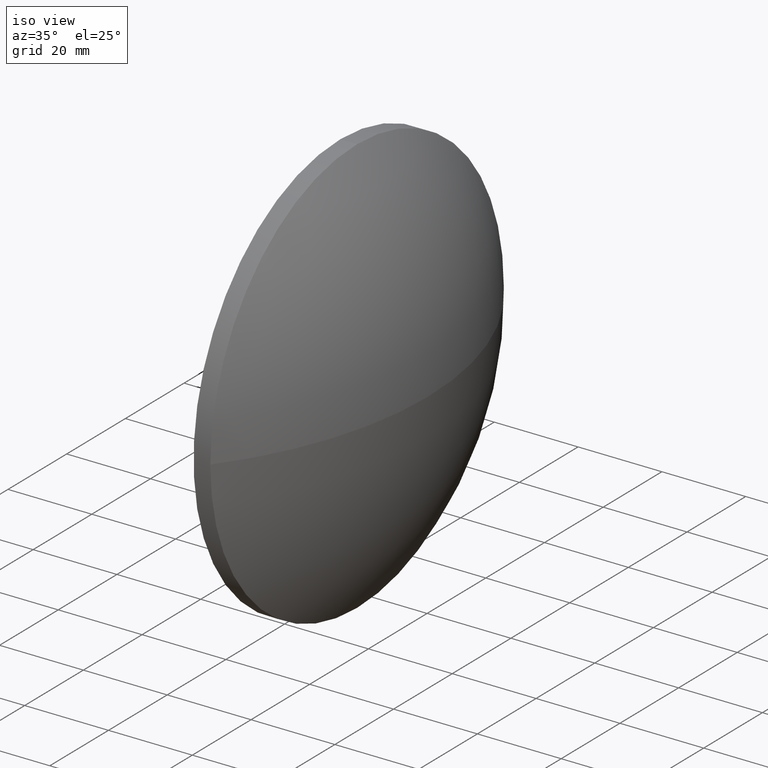
[diagram: clean part render]
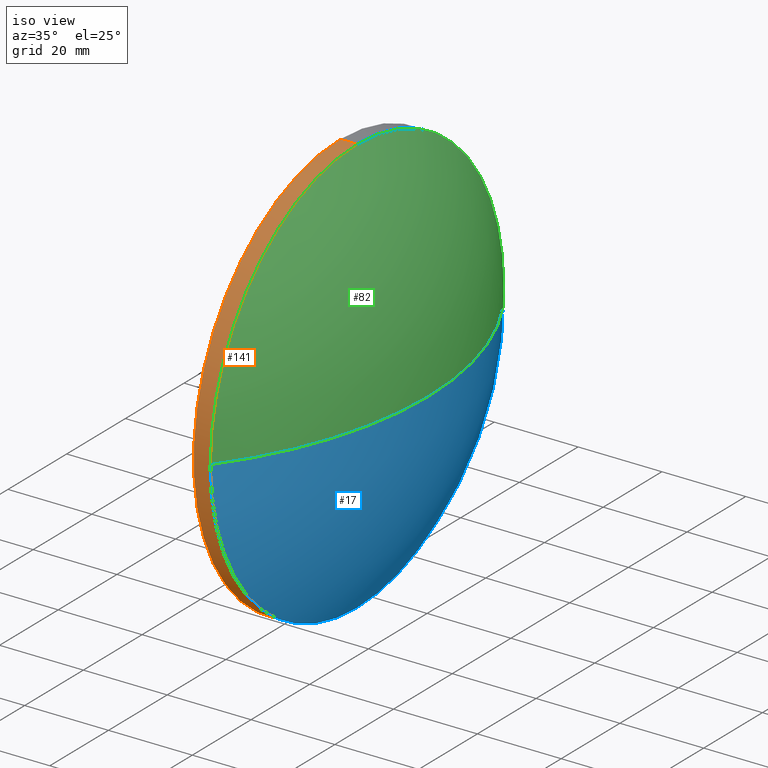
[diagram: same view with three faces highlighted in distinct colors, each labeled with its STEP entity id]
A machine part, iso view with three faces highlighted in distinct colors.
Their STEP definitions:

[orange] entity #141 — the highlighted cylindrical surface (partial cylindrical patch) has radius 50 mm, axis along (-1, -0, -0).
#6 = DIRECTION ( 'NONE',  ( -1.000000000000000000, -0.0000000000000000000, -0.0000000000000000000 ) ) ;
#20 = DIRECTION ( 'NONE',  ( 0.0000000000000000000, 0.0000000000000000000, 1.000000000000000000 ) ) ;
#21 = CARTESIAN_POINT ( 'NONE',  ( 229.9713472661685500, 130.4671098528244200, 50.00000000000001400 ) ) ;
#24 = CARTESIAN_POINT ( 'NONE',  ( 225.9713472661685500, 130.4671098528244200, 0.0000000000000000000 ) ) ;
#25 = CIRCLE ( 'NONE', #104, 50.00000000000001400 ) ;
#26 = DIRECTION ( 'NONE',  ( 0.0000000000000000000, 0.0000000000000000000, 1.000000000000000000 ) ) ;
#27 = LINE ( 'NONE', #184, #185 ) ;
#32 = EDGE_CURVE ( 'NONE', #165, #167, #152, .T. ) ;
#42 = DIRECTION ( 'NONE',  ( 0.0000000000000000000, 0.0000000000000000000, 1.000000000000000000 ) ) ;
#46 = EDGE_CURVE ( 'NONE', #161, #165, #25, .T. ) ;
#47 = ORIENTED_EDGE ( 'NONE', *, *, #145, .T. ) ;
#56 = CARTESIAN_POINT ( 'NONE',  ( 225.9713472661685500, 130.4671098528244200, -50.00000000000001400 ) ) ;
#57 = DIRECTION ( 'NONE',  ( -1.000000000000000000, -0.0000000000000000000, -0.0000000000000000000 ) ) ;
#58 = CARTESIAN_POINT ( 'NONE',  ( 229.9713472661685500, 80.46710985282440700, -6.123233995736769200E-015 ) ) ;
#84 = FACE_OUTER_BOUND ( 'NONE', #114, .T. ) ;
#85 = DIRECTION ( 'NONE',  ( -1.000000000000000000, -0.0000000000000000000, -0.0000000000000000000 ) ) ;
#86 = CARTESIAN_POINT ( 'NONE',  ( 217.9945825323866300, 130.4671098528244200, 50.00000000000001400 ) ) ;
#88 = CARTESIAN_POINT ( 'NONE',  ( 229.9713472661685500, 130.4671098528244200, 0.0000000000000000000 ) ) ;
#89 = AXIS2_PLACEMENT_3D ( 'NONE', #24, #144, #175 ) ;
#93 = CARTESIAN_POINT ( 'NONE',  ( 229.9713472661685500, 130.4671098528244200, 0.0000000000000000000 ) ) ;
#95 = VERTEX_POINT ( 'NONE', #56 ) ;
#96 = DIRECTION ( 'NONE',  ( -1.000000000000000000, -0.0000000000000000000, -0.0000000000000000000 ) ) ;
#97 = AXIS2_PLACEMENT_3D ( 'NONE', #183, #57, #42 ) ;
#104 = AXIS2_PLACEMENT_3D ( 'NONE', #88, #6, #20 ) ;
#106 = ORIENTED_EDGE ( 'NONE', *, *, #109, .F. ) ;
#107 = DIRECTION ( 'NONE',  ( -1.000000000000000000, -0.0000000000000000000, -0.0000000000000000000 ) ) ;
#109 = EDGE_CURVE ( 'NONE', #179, #95, #27, .T. ) ;
#114 = EDGE_LOOP ( 'NONE', ( #106, #47, #140, #126, #186 ) ) ;
#124 = CIRCLE ( 'NONE', #163, 50.00000000000001400 ) ;
#126 = ORIENTED_EDGE ( 'NONE', *, *, #32, .T. ) ;
#132 = CARTESIAN_POINT ( 'NONE',  ( 229.9713472661685500, 130.4671098528244200, -50.00000000000001400 ) ) ;
#140 = ORIENTED_EDGE ( 'NONE', *, *, #46, .T. ) ;
#141 = ADVANCED_FACE ( 'NONE', ( #84 ), #156, .T. ) ;
#144 = DIRECTION ( 'NONE',  ( -1.000000000000000000, -0.0000000000000000000, -0.0000000000000000000 ) ) ;
#145 = EDGE_CURVE ( 'NONE', #179, #161, #124, .T. ) ;
#149 = CIRCLE ( 'NONE', #89, 50.00000000000001400 ) ;
#150 = VECTOR ( 'NONE', #85, 1000.000000000000000 ) ;
#152 = LINE ( 'NONE', #86, #150 ) ;
#156 = CYLINDRICAL_SURFACE ( 'NONE', #97, 50.00000000000001400 ) ;
#157 = CARTESIAN_POINT ( 'NONE',  ( 225.9713472661685500, 130.4671098528244200, 50.00000000000001400 ) ) ;
#159 = EDGE_CURVE ( 'NONE', #95, #167, #149, .T. ) ;
#161 = VERTEX_POINT ( 'NONE', #58 ) ;
#163 = AXIS2_PLACEMENT_3D ( 'NONE', #93, #107, #26 ) ;
#165 = VERTEX_POINT ( 'NONE', #21 ) ;
#167 = VERTEX_POINT ( 'NONE', #157 ) ;
#175 = DIRECTION ( 'NONE',  ( 0.0000000000000000000, 0.0000000000000000000, 1.000000000000000000 ) ) ;
#179 = VERTEX_POINT ( 'NONE', #132 ) ;
#183 = CARTESIAN_POINT ( 'NONE',  ( 217.9945825323866300, 130.4671098528244200, 0.0000000000000000000 ) ) ;
#184 = CARTESIAN_POINT ( 'NONE',  ( 217.9945825323866300, 130.4671098528244200, -50.00000000000001400 ) ) ;
#185 = VECTOR ( 'NONE', #96, 1000.000000000000000 ) ;
#186 = ORIENTED_EDGE ( 'NONE', *, *, #159, .F. ) ;

[blue] entity #17 — the highlighted spherical surface has radius 82.609 mm.
#7 = CARTESIAN_POINT ( 'NONE',  ( 164.2123710050408900, 130.4671098528244200, 0.0000000000000000000 ) ) ;
#11 = EDGE_LOOP ( 'NONE', ( #172, #101, #14, #112 ) ) ;
#14 = ORIENTED_EDGE ( 'NONE', *, *, #145, .F. ) ;
#15 = CIRCLE ( 'NONE', #55, 50.00000000000001400 ) ;
#17 = ADVANCED_FACE ( 'NONE', ( #63 ), #79, .T. ) ;
#26 = DIRECTION ( 'NONE',  ( 0.0000000000000000000, 0.0000000000000000000, 1.000000000000000000 ) ) ;
#35 = EDGE_CURVE ( 'NONE', #164, #137, #122, .T. ) ;
#37 = DIRECTION ( 'NONE',  ( 1.000000000000000000, 0.0000000000000000000, 0.0000000000000000000 ) ) ;
#38 = CARTESIAN_POINT ( 'NONE',  ( 229.9713472661685500, 180.4671098528244500, 0.0000000000000000000 ) ) ;
#45 = CARTESIAN_POINT ( 'NONE',  ( 246.8213472661685400, 130.4671098528244200, 0.0000000000000000000 ) ) ;
#55 = AXIS2_PLACEMENT_3D ( 'NONE', #120, #72, #171 ) ;
#58 = CARTESIAN_POINT ( 'NONE',  ( 229.9713472661685500, 80.46710985282440700, -6.123233995736769200E-015 ) ) ;
#63 = FACE_OUTER_BOUND ( 'NONE', #11, .T. ) ;
#67 = CIRCLE ( 'NONE', #75, 82.60897626112768000 ) ;
#72 = DIRECTION ( 'NONE',  ( -1.000000000000000000, -0.0000000000000000000, -0.0000000000000000000 ) ) ;
#75 = AXIS2_PLACEMENT_3D ( 'NONE', #111, #136, #160 ) ;
#79 = SPHERICAL_SURFACE ( 'NONE', #127, 82.60897626112768000 ) ;
#81 = AXIS2_PLACEMENT_3D ( 'NONE', #129, #142, #37 ) ;
#93 = CARTESIAN_POINT ( 'NONE',  ( 229.9713472661685500, 130.4671098528244200, 0.0000000000000000000 ) ) ;
#101 = ORIENTED_EDGE ( 'NONE', *, *, #154, .T. ) ;
#107 = DIRECTION ( 'NONE',  ( -1.000000000000000000, -0.0000000000000000000, -0.0000000000000000000 ) ) ;
#111 = CARTESIAN_POINT ( 'NONE',  ( 164.2123710050408900, 130.4671098528244200, 0.0000000000000000000 ) ) ;
#112 = ORIENTED_EDGE ( 'NONE', *, *, #181, .F. ) ;
#120 = CARTESIAN_POINT ( 'NONE',  ( 229.9713472661685500, 130.4671098528244200, 0.0000000000000000000 ) ) ;
#122 = CIRCLE ( 'NONE', #81, 82.60897626112768000 ) ;
#124 = CIRCLE ( 'NONE', #163, 50.00000000000001400 ) ;
#127 = AXIS2_PLACEMENT_3D ( 'NONE', #7, #128, #168 ) ;
#128 = DIRECTION ( 'NONE',  ( -0.0000000000000000000, 0.0000000000000000000, -1.000000000000000000 ) ) ;
#129 = CARTESIAN_POINT ( 'NONE',  ( 164.2123710050408900, 130.4671098528244200, 0.0000000000000000000 ) ) ;
#132 = CARTESIAN_POINT ( 'NONE',  ( 229.9713472661685500, 130.4671098528244200, -50.00000000000001400 ) ) ;
#136 = DIRECTION ( 'NONE',  ( 0.0000000000000000000, 1.224646799147353200E-016, -1.000000000000000000 ) ) ;
#137 = VERTEX_POINT ( 'NONE', #38 ) ;
#142 = DIRECTION ( 'NONE',  ( -0.0000000000000000000, 0.0000000000000000000, 1.000000000000000000 ) ) ;
#145 = EDGE_CURVE ( 'NONE', #179, #161, #124, .T. ) ;
#154 = EDGE_CURVE ( 'NONE', #164, #161, #67, .T. ) ;
#160 = DIRECTION ( 'NONE',  ( 0.0000000000000000000, 1.000000000000000000, 1.224646799147353200E-016 ) ) ;
#161 = VERTEX_POINT ( 'NONE', #58 ) ;
#163 = AXIS2_PLACEMENT_3D ( 'NONE', #93, #107, #26 ) ;
#164 = VERTEX_POINT ( 'NONE', #45 ) ;
#168 = DIRECTION ( 'NONE',  ( 0.0000000000000000000, 1.000000000000000000, 0.0000000000000000000 ) ) ;
#171 = DIRECTION ( 'NONE',  ( 0.0000000000000000000, 0.0000000000000000000, 1.000000000000000000 ) ) ;
#172 = ORIENTED_EDGE ( 'NONE', *, *, #35, .F. ) ;
#179 = VERTEX_POINT ( 'NONE', #132 ) ;
#181 = EDGE_CURVE ( 'NONE', #137, #179, #15, .T. ) ;

[green] entity #82 — the highlighted spherical surface has radius 82.609 mm.
#1 = CARTESIAN_POINT ( 'NONE',  ( 229.9713472661685500, 130.4671098528244200, 0.0000000000000000000 ) ) ;
#6 = DIRECTION ( 'NONE',  ( -1.000000000000000000, -0.0000000000000000000, -0.0000000000000000000 ) ) ;
#10 = SPHERICAL_SURFACE ( 'NONE', #19, 82.60897626112768000 ) ;
#19 = AXIS2_PLACEMENT_3D ( 'NONE', #166, #71, #178 ) ;
#20 = DIRECTION ( 'NONE',  ( 0.0000000000000000000, 0.0000000000000000000, 1.000000000000000000 ) ) ;
#21 = CARTESIAN_POINT ( 'NONE',  ( 229.9713472661685500, 130.4671098528244200, 50.00000000000001400 ) ) ;
#23 = DIRECTION ( 'NONE',  ( 0.0000000000000000000, 0.0000000000000000000, 1.000000000000000000 ) ) ;
#25 = CIRCLE ( 'NONE', #104, 50.00000000000001400 ) ;
#34 = CIRCLE ( 'NONE', #53, 50.00000000000001400 ) ;
#35 = EDGE_CURVE ( 'NONE', #164, #137, #122, .T. ) ;
#36 = FACE_OUTER_BOUND ( 'NONE', #130, .T. ) ;
#37 = DIRECTION ( 'NONE',  ( 1.000000000000000000, 0.0000000000000000000, 0.0000000000000000000 ) ) ;
#38 = CARTESIAN_POINT ( 'NONE',  ( 229.9713472661685500, 180.4671098528244500, 0.0000000000000000000 ) ) ;
#43 = ORIENTED_EDGE ( 'NONE', *, *, #151, .F. ) ;
#45 = CARTESIAN_POINT ( 'NONE',  ( 246.8213472661685400, 130.4671098528244200, 0.0000000000000000000 ) ) ;
#46 = EDGE_CURVE ( 'NONE', #161, #165, #25, .T. ) ;
#53 = AXIS2_PLACEMENT_3D ( 'NONE', #1, #94, #23 ) ;
#58 = CARTESIAN_POINT ( 'NONE',  ( 229.9713472661685500, 80.46710985282440700, -6.123233995736769200E-015 ) ) ;
#65 = ORIENTED_EDGE ( 'NONE', *, *, #46, .F. ) ;
#67 = CIRCLE ( 'NONE', #75, 82.60897626112768000 ) ;
#68 = ORIENTED_EDGE ( 'NONE', *, *, #35, .T. ) ;
#71 = DIRECTION ( 'NONE',  ( -0.0000000000000000000, 0.0000000000000000000, -1.000000000000000000 ) ) ;
#75 = AXIS2_PLACEMENT_3D ( 'NONE', #111, #136, #160 ) ;
#81 = AXIS2_PLACEMENT_3D ( 'NONE', #129, #142, #37 ) ;
#82 = ADVANCED_FACE ( 'NONE', ( #36 ), #10, .T. ) ;
#88 = CARTESIAN_POINT ( 'NONE',  ( 229.9713472661685500, 130.4671098528244200, 0.0000000000000000000 ) ) ;
#94 = DIRECTION ( 'NONE',  ( -1.000000000000000000, -0.0000000000000000000, -0.0000000000000000000 ) ) ;
#104 = AXIS2_PLACEMENT_3D ( 'NONE', #88, #6, #20 ) ;
#111 = CARTESIAN_POINT ( 'NONE',  ( 164.2123710050408900, 130.4671098528244200, 0.0000000000000000000 ) ) ;
#122 = CIRCLE ( 'NONE', #81, 82.60897626112768000 ) ;
#129 = CARTESIAN_POINT ( 'NONE',  ( 164.2123710050408900, 130.4671098528244200, 0.0000000000000000000 ) ) ;
#130 = EDGE_LOOP ( 'NONE', ( #158, #68, #43, #65 ) ) ;
#136 = DIRECTION ( 'NONE',  ( 0.0000000000000000000, 1.224646799147353200E-016, -1.000000000000000000 ) ) ;
#137 = VERTEX_POINT ( 'NONE', #38 ) ;
#142 = DIRECTION ( 'NONE',  ( -0.0000000000000000000, 0.0000000000000000000, 1.000000000000000000 ) ) ;
#151 = EDGE_CURVE ( 'NONE', #165, #137, #34, .T. ) ;
#154 = EDGE_CURVE ( 'NONE', #164, #161, #67, .T. ) ;
#158 = ORIENTED_EDGE ( 'NONE', *, *, #154, .F. ) ;
#160 = DIRECTION ( 'NONE',  ( 0.0000000000000000000, 1.000000000000000000, 1.224646799147353200E-016 ) ) ;
#161 = VERTEX_POINT ( 'NONE', #58 ) ;
#164 = VERTEX_POINT ( 'NONE', #45 ) ;
#165 = VERTEX_POINT ( 'NONE', #21 ) ;
#166 = CARTESIAN_POINT ( 'NONE',  ( 164.2123710050408900, 130.4671098528244200, 0.0000000000000000000 ) ) ;
#178 = DIRECTION ( 'NONE',  ( 0.0000000000000000000, 1.000000000000000000, 0.0000000000000000000 ) ) ;